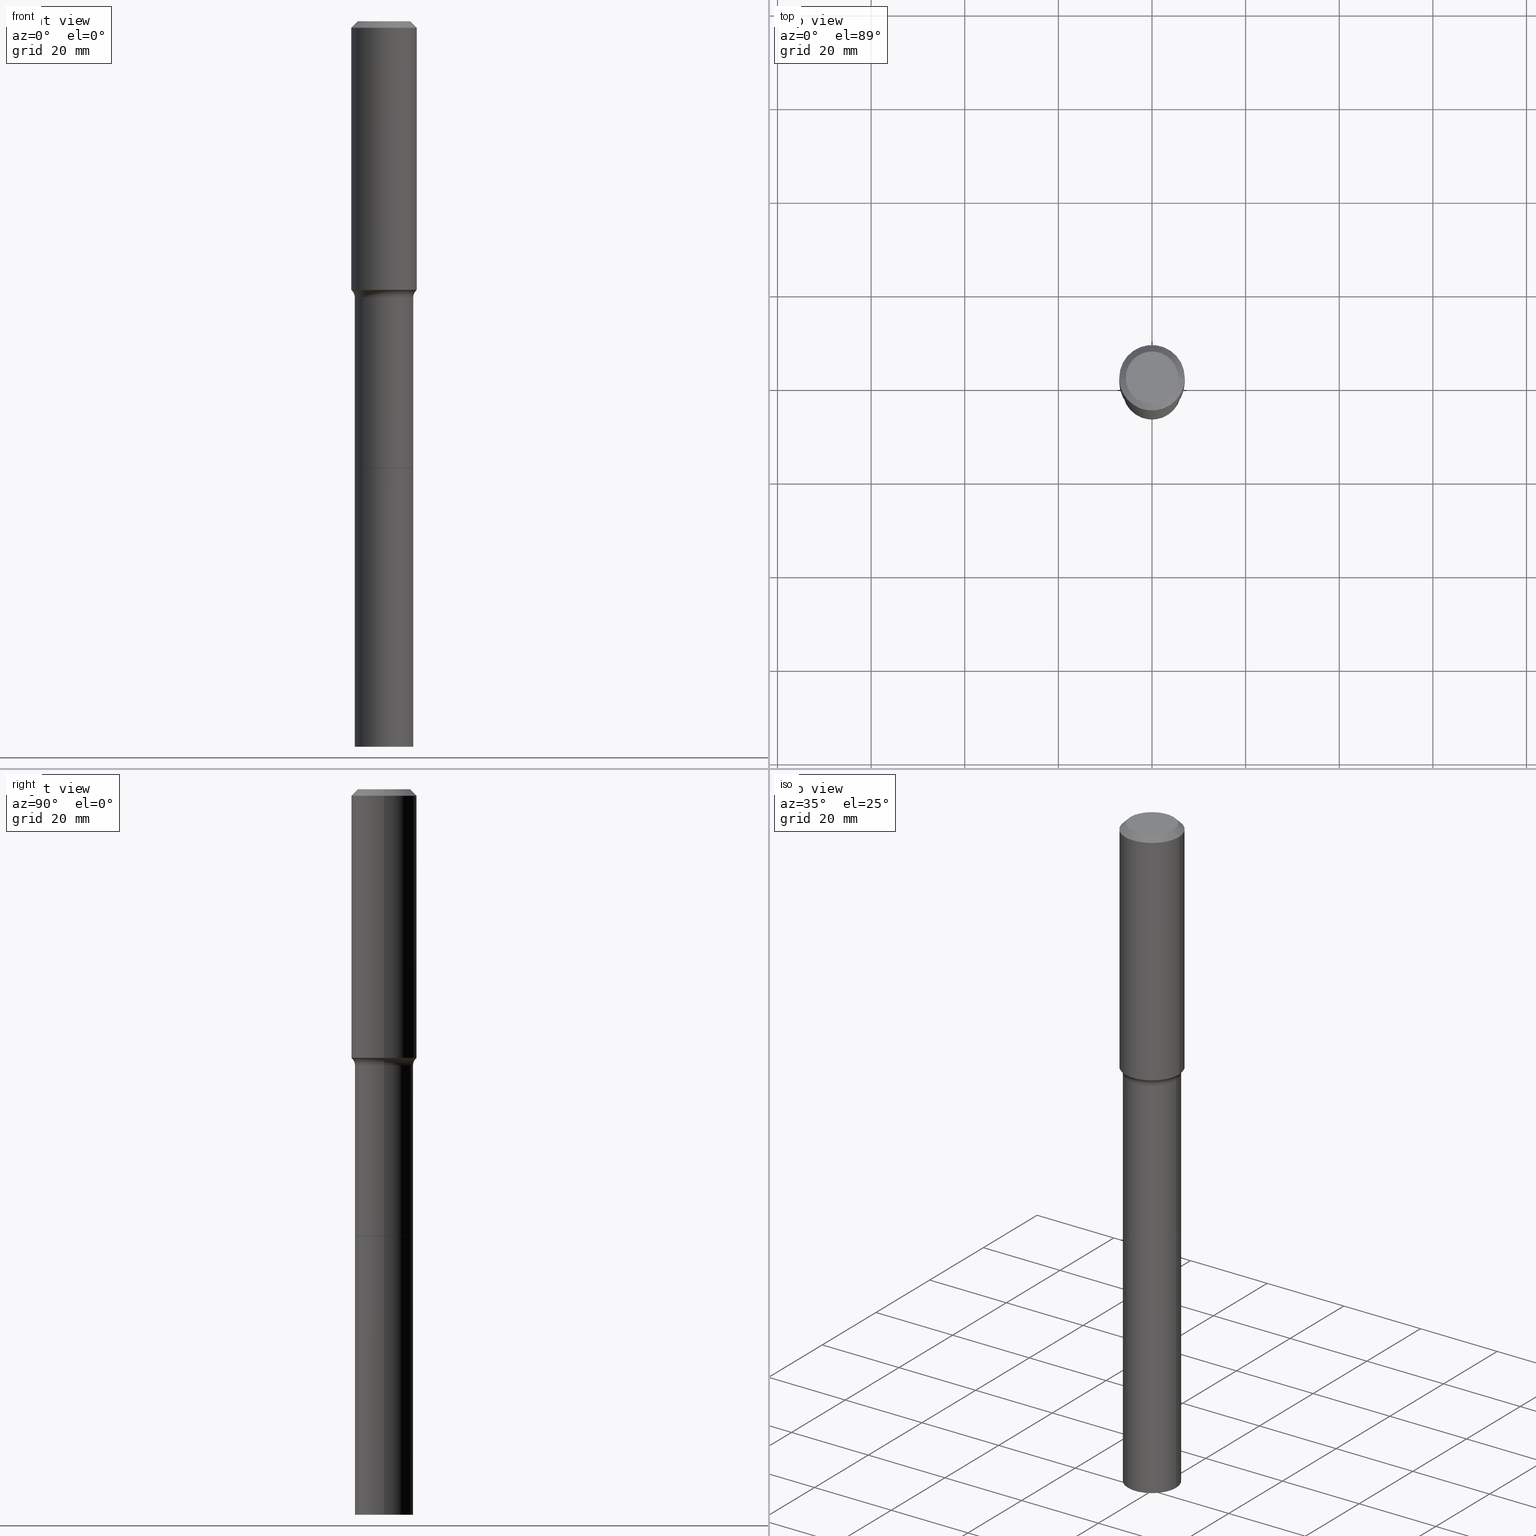
[diagram: canonical four-view strip — front | top / right | iso, engineering-drawing reading convention]
A machine part, canonical four-view strip (front | top / right | iso — engineering-drawing reading convention). The complete STEP part file that produces these views, byte-faithful:
ISO-10303-21;
HEADER;
FILE_DESCRIPTION (( 'STEP AP203' ),
    '1' );
FILE_NAME ('67909.STEP',
    '2025-04-01T15:32:18',
    ( '' ),
    ( '' ),
    'SwSTEP 2.0',
    'SolidWorks 2024',
    '' );
FILE_SCHEMA (( 'CONFIG_CONTROL_DESIGN' ));
ENDSEC;

DATA;
#1 =( NAMED_UNIT ( * ) SI_UNIT ( $, .STERADIAN. ) SOLID_ANGLE_UNIT ( ) );
#2 = ORIENTED_EDGE ( 'NONE', *, *, #195, .F. ) ;
#3 = FACE_OUTER_BOUND ( 'NONE', #356, .T. ) ;
#4 = ORIENTED_EDGE ( 'NONE', *, *, #41, .T. ) ;
#5 = EDGE_CURVE ( 'NONE', #212, #354, #409, .T. ) ;
#6 = EDGE_LOOP ( 'NONE', ( #255, #435, #428, #126 ) ) ;
#7 = PERSON_AND_ORGANIZATION ( #268, #201 ) ;
#8 = ORIENTED_EDGE ( 'NONE', *, *, #383, .F. ) ;
#9 = PERSON_AND_ORGANIZATION ( #268, #201 ) ;
#10 = DIRECTION ( 'NONE',  ( -2.445468806185136877E-29, 3.491481338843145188E-15, 1.000000000000000000 ) ) ;
#11 = CONICAL_SURFACE ( 'NONE', #222, 0.2455499999999999905, 0.7853981633973459164 ) ;
#12 = LOCAL_TIME ( 11, 32, 18.00000000000000000, #492 ) ;
#13 = DATE_AND_TIME ( #344, #230 ) ;
#14 = DIRECTION ( 'NONE',  ( 1.000000000000000000, -6.982962677686265922E-15, 4.876176775795935793E-29 ) ) ;
#15 = EDGE_CURVE ( 'NONE', #75, #204, #391, .T. ) ;
#16 = DIRECTION ( 'NONE',  ( 0.000000000000000000, 0.000000000000000000, 1.000000000000000000 ) ) ;
#17 = CARTESIAN_POINT ( 'NONE',  ( 9.195940898778586679E-29, -1.312936642658576311E-14, -3.760399999999999743 ) ) ;
#18 = DIRECTION ( 'NONE',  ( -2.445468806185136597E-29, 3.491481338843145583E-15, 1.000000000000000000 ) ) ;
#19 = DIRECTION ( 'NONE',  ( -2.445468806185136597E-29, 3.491481338843145583E-15, 1.000000000000000000 ) ) ;
#20 = CARTESIAN_POINT ( 'NONE',  ( 9.195940898778586679E-29, -1.312936642658576311E-14, -3.760399999999999743 ) ) ;
#21 = EDGE_LOOP ( 'NONE', ( #197, #396, #89, #270 ) ) ;
#22 = APPROVAL_ROLE ( '' ) ;
#23 = DIRECTION ( 'NONE',  ( -2.445468806185136877E-29, 3.491481338843145188E-15, 1.000000000000000000 ) ) ;
#24 = APPROVAL ( #98, 'UNSPECIFIED' ) ;
#25 = VERTEX_POINT ( 'NONE', #253 ) ;
#26 = CARTESIAN_POINT ( 'NONE',  ( 0.2460499999999999909, -1.484752439343046924E-14, -3.760399999999999743 ) ) ;
#27 = CIRCLE ( 'NONE', #445, 0.2756000000000000116 ) ;
#28 = VERTEX_POINT ( 'NONE', #402 ) ;
#29 = EDGE_CURVE ( 'NONE', #278, #241, #437, .T. ) ;
#30 = FACE_OUTER_BOUND ( 'NONE', #465, .T. ) ;
#31 = VERTEX_POINT ( 'NONE', #168 ) ;
#32 = DIRECTION ( 'NONE',  ( -2.445468806185136597E-29, 3.491481338843145583E-15, 1.000000000000000000 ) ) ;
#33 = DIRECTION ( 'NONE',  ( 2.438088387897960049E-29, -3.491481338843145188E-15, -1.000000000000000000 ) ) ;
#34 = DIRECTION ( 'NONE',  ( 1.000000000000000000, -6.982962677686266711E-15, 4.876132675269083677E-29 ) ) ;
#35 = VECTOR ( 'NONE', #258, 39.37007874015748143 ) ;
#36 = APPROVAL_PERSON_ORGANIZATION ( #450, #401, #64 ) ;
#37 = DIRECTION ( 'NONE',  ( 1.000000000000000000, -6.982962677686265922E-15, 4.876176775795936353E-29 ) ) ;
#38 = ORIENTED_EDGE ( 'NONE', *, *, #322, .T. ) ;
#39 = CARTESIAN_POINT ( 'NONE',  ( 1.347942405969256063E-30, -1.924504513970354330E-16, -0.05512000000000035621 ) ) ;
#40 = CARTESIAN_POINT ( 'NONE',  ( 5.545932298252180810E-29, -7.918121497546934360E-15, -2.267840131195000275 ) ) ;
#41 = EDGE_CURVE ( 'NONE', #321, #481, #506, .T. ) ;
#42 = FACE_OUTER_BOUND ( 'NONE', #174, .T. ) ;
#43 = DIRECTION ( 'NONE',  ( -2.445468806185136877E-29, 3.491481338843145188E-15, 1.000000000000000000 ) ) ;
#44 = CIRCLE ( 'NONE', #138, 0.2756000000000002892 ) ;
#45 = CIRCLE ( 'NONE', #323, 0.2675417038704662742 ) ;
#46 = PERSON_AND_ORGANIZATION_ROLE ( 'classification_officer' ) ;
#47 = ORIENTED_EDGE ( 'NONE', *, *, #316, .T. ) ;
#48 = CC_DESIGN_PERSON_AND_ORGANIZATION_ASSIGNMENT ( #108, #299, ( #334 ) ) ;
#49 = CYLINDRICAL_SURFACE ( 'NONE', #52, 0.2460499999999999909 ) ;
#50 = PERSON_AND_ORGANIZATION ( #268, #201 ) ;
#51 = DIRECTION ( 'NONE',  ( -2.445468806185136597E-29, 3.491481338843145583E-15, 1.000000000000000000 ) ) ;
#52 = AXIS2_PLACEMENT_3D ( 'NONE', #376, #56, #55 ) ;
#53 = VECTOR ( 'NONE', #324, 39.37007874015748143 ) ;
#54 = UNCERTAINTY_MEASURE_WITH_UNIT (LENGTH_MEASURE( 1.000000000000000082E-05 ), #252, 'distance_accuracy_value', 'NONE');
#55 = DIRECTION ( 'NONE',  ( 1.000000000000000000, -6.982962677686266711E-15, 0.000000000000000000 ) ) ;
#56 = DIRECTION ( 'NONE',  ( -2.445468806185136597E-29, 3.491481338843145583E-15, 1.000000000000000000 ) ) ;
#57 = CC_DESIGN_PERSON_AND_ORGANIZATION_ASSIGNMENT ( #305, #177, ( #254 ) ) ;
#58 = DIRECTION ( 'NONE',  ( -2.445468806185136597E-29, 3.491481338843145583E-15, 1.000000000000000000 ) ) ;
#59 = EDGE_CURVE ( 'NONE', #278, #28, #238, .T. ) ;
#60 = AXIS2_PLACEMENT_3D ( 'NONE', #294, #336, #136 ) ;
#61 = CONICAL_SURFACE ( 'NONE', #342, 0.2756000000000000116, 0.7853981633974452814 ) ;
#62 = PLANE ( 'NONE',  #213 ) ;
#63 = ORIENTED_EDGE ( 'NONE', *, *, #178, .F. ) ;
#64 = APPROVAL_ROLE ( '' ) ;
#65 = CC_DESIGN_DATE_AND_TIME_ASSIGNMENT ( #348, #142, ( #374 ) ) ;
#66 = DIRECTION ( 'NONE',  ( -2.438088387897960049E-29, 3.491481338843145188E-15, 1.000000000000000000 ) ) ;
#67 = ORIENTED_EDGE ( 'NONE', *, *, #511, .T. ) ;
#68 = EDGE_CURVE ( 'NONE', #215, #512, #484, .T. ) ;
#69 = CARTESIAN_POINT ( 'NONE',  ( 0.2460500000000000742, -1.484577865276104695E-14, -3.759899999999999576 ) ) ;
#70 = ORIENTED_EDGE ( 'NONE', *, *, #195, .T. ) ;
#71 = AXIS2_PLACEMENT_3D ( 'NONE', #143, #456, #495 ) ;
#72 = LINE ( 'NONE', #306, #180 ) ;
#73 = ORIENTED_EDGE ( 'NONE', *, *, #219, .F. ) ;
#74 = DIRECTION ( 'NONE',  ( 1.000000000000000000, -6.982962677686266711E-15, 4.876132675269083677E-29 ) ) ;
#75 = VERTEX_POINT ( 'NONE', #364 ) ;
#76 = EDGE_CURVE ( 'NONE', #171, #481, #367, .T. ) ;
#77 = DIRECTION ( 'NONE',  ( 1.000000000000000000, -6.982962677686265922E-15, 0.000000000000000000 ) ) ;
#78 = ORIENTED_EDGE ( 'NONE', *, *, #225, .F. ) ;
#79 = ADVANCED_FACE ( 'NONE', ( #419 ), #49, .T. ) ;
#80 = LINE ( 'NONE', #208, #53 ) ;
#81 = CIRCLE ( 'NONE', #60, 0.2455499999999999905 ) ;
#82 = ORIENTED_EDGE ( 'NONE', *, *, #322, .F. ) ;
#83 = AXIS2_PLACEMENT_3D ( 'NONE', #303, #160, #422 ) ;
#84 = CC_DESIGN_APPROVAL ( #483, ( #334 ) ) ;
#85 = CARTESIAN_POINT ( 'NONE',  ( 5.679356755484361141E-29, -8.108616261329321631E-15, -2.322400000000000020 ) ) ;
#86 = DIRECTION ( 'NONE',  ( 1.000000000000000000, -6.982962677686267499E-15, 0.000000000000000000 ) ) ;
#87 =( LENGTH_UNIT ( ) NAMED_UNIT ( * ) SI_UNIT ( $, .METRE. ) );
#88 = ADVANCED_FACE ( 'NONE', ( #486 ), #420, .T. ) ;
#89 = ORIENTED_EDGE ( 'NONE', *, *, #113, .T. ) ;
#90 = DIRECTION ( 'NONE',  ( 1.000000000000000000, -6.982962677686264344E-15, 0.000000000000000000 ) ) ;
#91 = ORIENTED_EDGE ( 'NONE', *, *, #418, .T. ) ;
#92 = CIRCLE ( 'NONE', #379, 0.2756000000000000116 ) ;
#93 = AXIS2_PLACEMENT_3D ( 'NONE', #338, #457, #14 ) ;
#94 = AXIS2_PLACEMENT_3D ( 'NONE', #235, #277, #427 ) ;
#95 = APPLICATION_PROTOCOL_DEFINITION ( 'international standard', 'config_control_design', 1994, #130 ) ;
#96 = DIRECTION ( 'NONE',  ( -2.445468806185136597E-29, 3.491481338843145583E-15, 1.000000000000000000 ) ) ;
#97 = CARTESIAN_POINT ( 'NONE',  ( 9.194718164375493878E-29, -1.312762068591634082E-14, -3.759899999999999576 ) ) ;
#98 = APPROVAL_STATUS ( 'not_yet_approved' ) ;
#99 = DIRECTION ( 'NONE',  ( 1.000000000000000000, -6.982962677686265922E-15, 4.876176775795935793E-29 ) ) ;
#100 = MANIFOLD_SOLID_BREP ( 'Body-Move/Copy2[1]', #200 ) ;
#101 = AXIS2_PLACEMENT_3D ( 'NONE', #166, #33, #132 ) ;
#102 = ADVANCED_FACE ( 'NONE', ( #144 ), #217, .T. ) ;
#103 = DIRECTION ( 'NONE',  ( -2.445468806185136597E-29, 3.491481338843145583E-15, 1.000000000000000000 ) ) ;
#104 = LINE ( 'NONE', #378, #35 ) ;
#105 = APPLICATION_CONTEXT ( 'configuration controlled 3d designs of mechanical parts and assemblies' ) ;
#106 = CARTESIAN_POINT ( 'NONE',  ( 0.2455499999999999905, -1.484403291209162466E-14, -3.760399999999999743 ) ) ;
#107 = ORIENTED_EDGE ( 'NONE', *, *, #460, .F. ) ;
#108 = PERSON_AND_ORGANIZATION ( #268, #201 ) ;
#109 = AXIS2_PLACEMENT_3D ( 'NONE', #17, #185, #141 ) ;
#110 = AXIS2_PLACEMENT_3D ( 'NONE', #274, #151, #343 ) ;
#111 = CC_DESIGN_APPROVAL ( #24, ( #254 ) ) ;
#112 = ORIENTED_EDGE ( 'NONE', *, *, #127, .F. ) ;
#113 = EDGE_CURVE ( 'NONE', #468, #512, #92, .T. ) ;
#114 = DIRECTION ( 'NONE',  ( 1.000000000000000000, -6.982962677686265922E-15, 4.876176775795935793E-29 ) ) ;
#115 = ORIENTED_EDGE ( 'NONE', *, *, #316, .F. ) ;
#116 = DIRECTION ( 'NONE',  ( 1.000000000000000000, -6.982962677686269077E-15, 0.000000000000000000 ) ) ;
#117 = EDGE_LOOP ( 'NONE', ( #244, #388, #368, #471 ) ) ;
#118 = VECTOR ( 'NONE', #290, 39.37007874015748143 ) ;
#119 = CARTESIAN_POINT ( 'NONE',  ( 0.2756000000000002892, -9.812454499037325729E-15, -2.259198666569575131 ) ) ;
#120 = AXIS2_PLACEMENT_3D ( 'NONE', #442, #476, #173 ) ;
#121 = ADVANCED_FACE ( 'NONE', ( #182 ), #333, .T. ) ;
#122 = ORIENTED_EDGE ( 'NONE', *, *, #245, .T. ) ;
#123 = CYLINDRICAL_SURFACE ( 'NONE', #162, 0.2460499999999999909 ) ;
#124 = CARTESIAN_POINT ( 'NONE',  ( -9.439721640706190018E-47, 1.347742071746724849E-32, 3.860086710912454339E-18 ) ) ;
#125 = CARTESIAN_POINT ( 'NONE',  ( -0.2460499999999999909, -1.546960067303336290E-14, -3.760399999999999743 ) ) ;
#126 = ORIENTED_EDGE ( 'NONE', *, *, #405, .F. ) ;
#127 = EDGE_CURVE ( 'NONE', #28, #215, #226, .T. ) ;
#128 = DIRECTION ( 'NONE',  ( -2.445468806185136597E-29, 3.491481338843145583E-15, 1.000000000000000000 ) ) ;
#129 = DIRECTION ( 'NONE',  ( -2.445468806185136597E-29, 3.491481338843145583E-15, 1.000000000000000000 ) ) ;
#130 = APPLICATION_CONTEXT ( 'configuration controlled 3d designs of mechanical parts and assemblies' ) ;
#131 = EDGE_CURVE ( 'NONE', #354, #212, #81, .T. ) ;
#132 = DIRECTION ( 'NONE',  ( -1.000000000000000000, 6.982962677686265922E-15, -4.876176775795935793E-29 ) ) ;
#133 = ORIENTED_EDGE ( 'NONE', *, *, #262, .T. ) ;
#134 = PLANE ( 'NONE',  #101 ) ;
#135 = CARTESIAN_POINT ( 'NONE',  ( -0.2460499999999999909, -1.138107602524803588E-14, -3.760399999999999743 ) ) ;
#136 = DIRECTION ( 'NONE',  ( 1.000000000000000000, -6.982962677686269077E-15, 0.000000000000000000 ) ) ;
#137 = EDGE_CURVE ( 'NONE', #247, #171, #228, .T. ) ;
#138 = AXIS2_PLACEMENT_3D ( 'NONE', #491, #96, #263 ) ;
#139 = AXIS2_PLACEMENT_3D ( 'NONE', #287, #279, #250 ) ;
#140 = DATE_AND_TIME ( #216, #12 ) ;
#141 = DIRECTION ( 'NONE',  ( 1.000000000000000000, -6.982962677686269077E-15, 0.000000000000000000 ) ) ;
#142 = DATE_TIME_ROLE ( 'classification_date' ) ;
#143 = CARTESIAN_POINT ( 'NONE',  ( 1.492322884286417914E-28, -2.130641572215641241E-14, -6.102400000000000269 ) ) ;
#144 = FACE_OUTER_BOUND ( 'NONE', #430, .T. ) ;
#145 = AXIS2_PLACEMENT_3D ( 'NONE', #124, #398, #34 ) ;
#146 = CIRCLE ( 'NONE', #446, 0.2460499999999999909 ) ;
#147 = EDGE_CURVE ( 'NONE', #215, #241, #44, .T. ) ;
#148 = LINE ( 'NONE', #227, #423 ) ;
#149 = CARTESIAN_POINT ( 'NONE',  ( 5.545932298252180810E-29, -7.918121497546934360E-15, -2.267840131195000275 ) ) ;
#150 = EDGE_CURVE ( 'NONE', #481, #321, #371, .T. ) ;
#151 = DIRECTION ( 'NONE',  ( -2.445468806185136597E-29, 3.491481338843145583E-15, 1.000000000000000000 ) ) ;
#152 = EDGE_LOOP ( 'NONE', ( #78, #251, #122, #477 ) ) ;
#153 = TOROIDAL_SURFACE ( 'NONE', #479, 0.3260499999999998400, 0.07999999999999996003 ) ;
#154 = LOCAL_TIME ( 11, 32, 18.00000000000000000, #466 ) ;
#155 = DIRECTION ( 'NONE',  ( -2.445468806185136597E-29, 3.491481338843145583E-15, 1.000000000000000000 ) ) ;
#156 = ORIENTED_EDGE ( 'NONE', *, *, #499, .T. ) ;
#157 = CARTESIAN_POINT ( 'NONE',  ( 1.492322884286417914E-28, -2.130641572215641241E-14, -6.102400000000000269 ) ) ;
#158 = ORIENTED_EDGE ( 'NONE', *, *, #351, .T. ) ;
#159 = ADVANCED_FACE ( 'NONE', ( #421 ), #331, .T. ) ;
#160 = DIRECTION ( 'NONE',  ( 7.105427357601001859E-15, 1.000000000000000000, -3.491481338843145583E-15 ) ) ;
#161 = ORIENTED_EDGE ( 'NONE', *, *, #5, .F. ) ;
#162 = AXIS2_PLACEMENT_3D ( 'NONE', #407, #360, #395 ) ;
#163 = DIRECTION ( 'NONE',  ( 1.000000000000000000, -6.982962677686267499E-15, 4.883557194083112901E-29 ) ) ;
#164 = TOROIDAL_SURFACE ( 'NONE', #455, 0.3260499999999998400, 0.07999999999999996003 ) ;
#165 = ORIENTED_EDGE ( 'NONE', *, *, #131, .T. ) ;
#166 = CARTESIAN_POINT ( 'NONE',  ( -4.719860820353095009E-47, 6.738710358733624243E-33, 1.930043355456227170E-18 ) ) ;
#167 = ORIENTED_EDGE ( 'NONE', *, *, #357, .F. ) ;
#168 = CARTESIAN_POINT ( 'NONE',  ( -0.2460500000000000742, -8.869828072285101626E-15, -3.759899999999999576 ) ) ;
#169 = FACE_OUTER_BOUND ( 'NONE', #394, .T. ) ;
#170 = VECTOR ( 'NONE', #406, 39.37007874015748143 ) ;
#171 = VERTEX_POINT ( 'NONE', #176 ) ;
#172 = VECTOR ( 'NONE', #429, 39.37007874015748143 ) ;
#173 = DIRECTION ( 'NONE',  ( 1.000000000000000000, -6.982962677686267499E-15, 0.000000000000000000 ) ) ;
#174 = EDGE_LOOP ( 'NONE', ( #432, #317, #192, #73 ) ) ;
#175 = APPROVAL_STATUS ( 'not_yet_approved' ) ;
#176 = CARTESIAN_POINT ( 'NONE',  ( -0.2460499999999999909, -1.546960067303336290E-14, -6.102400000000000269 ) ) ;
#177 = PERSON_AND_ORGANIZATION_ROLE ( 'creator' ) ;
#178 = EDGE_CURVE ( 'NONE', #426, #25, #487, .T. ) ;
#179 = CARTESIAN_POINT ( 'NONE',  ( -0.2675417038704662742, -6.017123355566536661E-15, -2.267840131195000275 ) ) ;
#180 = VECTOR ( 'NONE', #309, 39.37007874015748143 ) ;
#181 = APPROVAL_DATE_TIME ( #13, #401 ) ;
#182 = FACE_OUTER_BOUND ( 'NONE', #6, .T. ) ;
#183 = DESIGN_CONTEXT ( 'detailed design', #105, 'design' ) ;
#184 = PERSON_AND_ORGANIZATION_ROLE ( 'design_supplier' ) ;
#185 = DIRECTION ( 'NONE',  ( -2.445468806185136597E-29, 3.491481338843145583E-15, 1.000000000000000000 ) ) ;
#186 = AXIS2_PLACEMENT_3D ( 'NONE', #353, #19, #509 ) ;
#187 = FACE_OUTER_BOUND ( 'NONE', #234, .T. ) ;
#188 = LINE ( 'NONE', #384, #172 ) ;
#189 = ORIENTED_EDGE ( 'NONE', *, *, #460, .T. ) ;
#190 = COORDINATED_UNIVERSAL_TIME_OFFSET ( 5, 0, .BEHIND. ) ;
#191 = LINE ( 'NONE', #106, #382 ) ;
#192 = ORIENTED_EDGE ( 'NONE', *, *, #41, .F. ) ;
#193 = CIRCLE ( 'NONE', #94, 0.2756000000000002892 ) ;
#194 = CARTESIAN_POINT ( 'NONE',  ( 0.2460499999999999909, -2.302457368900111697E-14, -6.102400000000000269 ) ) ;
#195 = EDGE_CURVE ( 'NONE', #354, #31, #104, .T. ) ;
#196 = CARTESIAN_POINT ( 'NONE',  ( 0.2460499999999999632, -1.718157966844705541E-15, 1.199783295684589923E-29 ) ) ;
#197 = ORIENTED_EDGE ( 'NONE', *, *, #15, .F. ) ;
#198 = CARTESIAN_POINT ( 'NONE',  ( -0.2756000000000000116, -2.081944438477174284E-15, -0.05512000000000035621 ) ) ;
#199 = ORIENTED_EDGE ( 'NONE', *, *, #351, .F. ) ;
#200 = CLOSED_SHELL ( 'NONE', ( #449, #88, #79, #454 ) ) ;
#201 = ORGANIZATION ( 'UNSPECIFIED', 'UNSPECIFIED', '' ) ;
#202 = DIRECTION ( 'NONE',  ( -2.445468806185136597E-29, 3.491481338843145583E-15, 1.000000000000000000 ) ) ;
#203 = EDGE_CURVE ( 'NONE', #319, #31, #239, .T. ) ;
#204 = VERTEX_POINT ( 'NONE', #260 ) ;
#205 = LENGTH_MEASURE_WITH_UNIT ( LENGTH_MEASURE( 0.02539999999999999897 ), #87 );
#206 = ADVANCED_FACE ( 'NONE', ( #300 ), #164, .F. ) ;
#207 = ORIENTED_EDGE ( 'NONE', *, *, #59, .T. ) ;
#208 = CARTESIAN_POINT ( 'NONE',  ( -0.2460499999999999632, 1.748290401337726246E-15, -1.210303978957219394E-29 ) ) ;
#209 = CARTESIAN_POINT ( 'NONE',  ( -0.2756000000000001782, 1.958255779754837378E-15, -1.355658510874252848E-29 ) ) ;
#210 = CYLINDRICAL_SURFACE ( 'NONE', #285, 0.2460499999999999632 ) ;
#211 = AXIS2_PLACEMENT_3D ( 'NONE', #265, #51, #99 ) ;
#212 = VERTEX_POINT ( 'NONE', #453 ) ;
#213 = AXIS2_PLACEMENT_3D ( 'NONE', #393, #66, #114 ) ;
#214 = CALENDAR_DATE ( 2025, 1, 4 ) ;
#215 = VERTEX_POINT ( 'NONE', #498 ) ;
#216 = CALENDAR_DATE ( 2025, 1, 4 ) ;
#217 = CYLINDRICAL_SURFACE ( 'NONE', #93, 0.2756000000000001782 ) ;
#218 = SECURITY_CLASSIFICATION_LEVEL ( 'unclassified' ) ;
#219 = EDGE_CURVE ( 'NONE', #247, #321, #148, .T. ) ;
#220 = DIRECTION ( 'NONE',  ( 1.000000000000000000, -6.982962677686265922E-15, 0.000000000000000000 ) ) ;
#221 = CLOSED_SHELL ( 'NONE', ( #159, #494, #121, #502, #206, #326, #469, #412, #339, #102, #242, #438, #236, #302 ) ) ;
#222 = AXIS2_PLACEMENT_3D ( 'NONE', #20, #387, #116 ) ;
#223 = CALENDAR_DATE ( 2025, 1, 4 ) ;
#224 = DIRECTION ( 'NONE',  ( -2.445468806185136597E-29, 3.491481338843145583E-15, 1.000000000000000000 ) ) ;
#225 = EDGE_CURVE ( 'NONE', #28, #25, #365, .T. ) ;
#226 = LINE ( 'NONE', #179, #496 ) ;
#227 = CARTESIAN_POINT ( 'NONE',  ( 0.2460499999999999909, -1.484752439343046924E-14, -3.760399999999999743 ) ) ;
#228 = CIRCLE ( 'NONE', #359, 0.2460499999999999909 ) ;
#229 = AXIS2_PLACEMENT_3D ( 'NONE', #389, #273, #243 ) ;
#230 = LOCAL_TIME ( 11, 32, 18.00000000000000000, #257 ) ;
#231 = DIRECTION ( 'NONE',  ( 1.000000000000000000, -6.982962677686259611E-15, 0.000000000000000000 ) ) ;
#232 = ORIENTED_EDGE ( 'NONE', *, *, #511, .F. ) ;
#233 = FACE_OUTER_BOUND ( 'NONE', #473, .T. ) ;
#234 = EDGE_LOOP ( 'NONE', ( #112, #288, #385, #283 ) ) ;
#235 = CARTESIAN_POINT ( 'NONE',  ( 5.524799866070951435E-29, -7.887949985066989197E-15, -2.259198666569575131 ) ) ;
#236 = ADVANCED_FACE ( 'NONE', ( #233 ), #62, .F. ) ;
#237 = ORIENTED_EDGE ( 'NONE', *, *, #418, .F. ) ;
#238 = CIRCLE ( 'NONE', #292, 0.2675417038704662742 ) ;
#239 = CIRCLE ( 'NONE', #332, 0.2460500000000000742 ) ;
#240 = CARTESIAN_POINT ( 'NONE',  ( -0.2455499999999999905, -1.138197951175272400E-14, -3.760399999999999743 ) ) ;
#241 = VERTEX_POINT ( 'NONE', #119 ) ;
#242 = ADVANCED_FACE ( 'NONE', ( #30 ), #372, .T. ) ;
#243 = DIRECTION ( 'NONE',  ( -1.000000000000000000, 6.982962677686269077E-15, 0.000000000000000000 ) ) ;
#244 = ORIENTED_EDGE ( 'NONE', *, *, #76, .F. ) ;
#245 = EDGE_CURVE ( 'NONE', #278, #426, #474, .T. ) ;
#246 = PLANE ( 'NONE',  #139 ) ;
#247 = VERTEX_POINT ( 'NONE', #194 ) ;
#248 = AXIS2_PLACEMENT_3D ( 'NONE', #467, #313, #269 ) ;
#249 = CARTESIAN_POINT ( 'NONE',  ( 0.2675417038704662742, -9.786355230398991649E-15, -2.267840131195000275 ) ) ;
#250 = DIRECTION ( 'NONE',  ( -1.000000000000000000, 6.982962677686265922E-15, -4.876176775795935793E-29 ) ) ;
#251 = ORIENTED_EDGE ( 'NONE', *, *, #59, .F. ) ;
#252 =( CONVERSION_BASED_UNIT ( 'INCH', #205 ) LENGTH_UNIT ( ) NAMED_UNIT ( #403 ) );
#253 = CARTESIAN_POINT ( 'NONE',  ( -0.2460499999999998799, -8.869828072285103204E-15, -2.322400000000000020 ) ) ;
#254 = PRODUCT_DEFINITION ( 'UNKNOWN', '', #334, #183 ) ;
#255 = ORIENTED_EDGE ( 'NONE', *, *, #298, .T. ) ;
#256 = VECTOR ( 'NONE', #304, 39.37007874015748143 ) ;
#257 = COORDINATED_UNIVERSAL_TIME_OFFSET ( 5, 0, .BEHIND. ) ;
#258 = DIRECTION ( 'NONE',  ( -0.7071067811864750752, 7.493145998870092258E-15, 0.7071067811866199593 ) ) ;
#259 = DATE_AND_TIME ( #261, #489 ) ;
#260 = CARTESIAN_POINT ( 'NONE',  ( -0.2204800000000000093, 1.635828836874783961E-15, 3.860086710901350968E-18 ) ) ;
#261 = CALENDAR_DATE ( 2025, 1, 4 ) ;
#262 = EDGE_CURVE ( 'NONE', #204, #512, #271, .T. ) ;
#263 = DIRECTION ( 'NONE',  ( 1.000000000000000000, -6.982962677686265922E-15, 0.000000000000000000 ) ) ;
#264 = AXIS2_PLACEMENT_3D ( 'NONE', #480, #282, #320 ) ;
#265 = CARTESIAN_POINT ( 'NONE',  ( 0.000000000000000000, 0.000000000000000000, 0.000000000000000000 ) ) ;
#266 = PRODUCT ( '67909', '67909', '', ( #330 ) ) ;
#267 = CARTESIAN_POINT ( 'NONE',  ( 1.492322884286417914E-28, -2.130641572215641241E-14, -6.102400000000000269 ) ) ;
#268 = PERSON ( 'UNSPECIFIED', 'UNSPECIFIED', 'UNSPECIFIED', ('UNSPECIFIED'), ('UNSPECIFIED'), ('UNSPECIFIED') ) ;
#269 = DIRECTION ( 'NONE',  ( 1.000000000000000000, -6.982962677686262766E-15, 0.000000000000000000 ) ) ;
#270 = ORIENTED_EDGE ( 'NONE', *, *, #262, .F. ) ;
#271 = LINE ( 'NONE', #345, #256 ) ;
#272 = EDGE_LOOP ( 'NONE', ( #4, #510 ) ) ;
#273 = DIRECTION ( 'NONE',  ( 2.445468806185136597E-29, -3.491481338843145583E-15, -1.000000000000000000 ) ) ;
#274 = CARTESIAN_POINT ( 'NONE',  ( 5.545932298252180810E-29, -7.918121497546934360E-15, -2.267840131195000275 ) ) ;
#275 = ORIENTED_EDGE ( 'NONE', *, *, #5, .T. ) ;
#276 = CONICAL_SURFACE ( 'NONE', #120, 0.2675417038704662742, 0.7504915783575631938 ) ;
#277 = DIRECTION ( 'NONE',  ( -2.445468806185136597E-29, 3.491481338843145583E-15, 1.000000000000000000 ) ) ;
#278 = VERTEX_POINT ( 'NONE', #472 ) ;
#279 = DIRECTION ( 'NONE',  ( 2.438088387897960049E-29, -3.491481338843145188E-15, -1.000000000000000000 ) ) ;
#280 = EDGE_LOOP ( 'NONE', ( #275, #70, #459, #199 ) ) ;
#281 = CC_DESIGN_DATE_AND_TIME_ASSIGNMENT ( #259, #413, ( #254 ) ) ;
#282 = DIRECTION ( 'NONE',  ( -2.445468806185136597E-29, 3.491481338843145583E-15, 1.000000000000000000 ) ) ;
#283 = ORIENTED_EDGE ( 'NONE', *, *, #147, .F. ) ;
#284 = VECTOR ( 'NONE', #43, 39.37007874015748143 ) ;
#285 = AXIS2_PLACEMENT_3D ( 'NONE', #397, #128, #37 ) ;
#286 = DIRECTION ( 'NONE',  ( 1.000000000000000000, -6.982962677686266711E-15, 0.000000000000000000 ) ) ;
#287 = CARTESIAN_POINT ( 'NONE',  ( 9.195940898778586679E-29, -1.312936642658576311E-14, -3.760399999999999743 ) ) ;
#288 = ORIENTED_EDGE ( 'NONE', *, *, #377, .T. ) ;
#289 = CARTESIAN_POINT ( 'NONE',  ( 0.2756000000000000116, -2.116954965367370658E-15, -0.05512000000000035621 ) ) ;
#290 = DIRECTION ( 'NONE',  ( -2.445468806185136877E-29, 3.491481338843145188E-15, 1.000000000000000000 ) ) ;
#291 = APPROVAL_DATE_TIME ( #140, #24 ) ;
#292 = AXIS2_PLACEMENT_3D ( 'NONE', #40, #440, #86 ) ;
#293 = AXIS2_PLACEMENT_3D ( 'NONE', #447, #16, #386 ) ;
#294 = CARTESIAN_POINT ( 'NONE',  ( 9.195940898778586679E-29, -1.312936642658576311E-14, -3.760399999999999743 ) ) ;
#295 = APPROVAL_PERSON_ORGANIZATION ( #50, #483, #490 ) ;
#296 = PERSON_AND_ORGANIZATION ( #268, #201 ) ;
#297 = DIRECTION ( 'NONE',  ( 1.000000000000000000, -6.982962677686267499E-15, 4.883557194083112901E-29 ) ) ;
#298 = EDGE_CURVE ( 'NONE', #241, #215, #193, .T. ) ;
#299 = PERSON_AND_ORGANIZATION_ROLE ( 'creator' ) ;
#300 = FACE_OUTER_BOUND ( 'NONE', #310, .T. ) ;
#301 = DIRECTION ( 'NONE',  ( -2.445468806185136597E-29, 3.491481338843145583E-15, 1.000000000000000000 ) ) ;
#302 = ADVANCED_FACE ( 'NONE', ( #463 ), #11, .T. ) ;
#303 = CARTESIAN_POINT ( 'NONE',  ( -0.3260499999999998400, -5.791891671383515324E-15, -2.322400000000000020 ) ) ;
#304 = DIRECTION ( 'NONE',  ( -0.7071067811865453523, 2.468850131082234184E-15, -0.7071067811865496822 ) ) ;
#305 = PERSON_AND_ORGANIZATION ( #268, #201 ) ;
#306 = CARTESIAN_POINT ( 'NONE',  ( 0.2756000000000001782, -1.924504513970336137E-15, 1.343874319409360828E-29 ) ) ;
#307 = ORIENTED_EDGE ( 'NONE', *, *, #377, .F. ) ;
#308 = LOCAL_TIME ( 11, 32, 18.00000000000000000, #415 ) ;
#309 = DIRECTION ( 'NONE',  ( -2.445468806185136877E-29, 3.491481338843145188E-15, 1.000000000000000000 ) ) ;
#310 = EDGE_LOOP ( 'NONE', ( #307, #325, #91, #424 ) ) ;
#311 = DIRECTION ( 'NONE',  ( -2.445468806185136597E-29, 3.491481338843145583E-15, 1.000000000000000000 ) ) ;
#312 = ORIENTED_EDGE ( 'NONE', *, *, #499, .F. ) ;
#313 = DIRECTION ( 'NONE',  ( -6.982962677686266711E-15, -1.000000000000000000, 3.491481338843145583E-15 ) ) ;
#314 = ORIENTED_EDGE ( 'NONE', *, *, #15, .T. ) ;
#315 = VECTOR ( 'NONE', #23, 39.37007874015748143 ) ;
#316 = EDGE_CURVE ( 'NONE', #319, #426, #458, .T. ) ;
#317 = ORIENTED_EDGE ( 'NONE', *, *, #76, .T. ) ;
#318 = FACE_OUTER_BOUND ( 'NONE', #361, .T. ) ;
#319 = VERTEX_POINT ( 'NONE', #69 ) ;
#320 = DIRECTION ( 'NONE',  ( 1.000000000000000000, -6.982962677686269866E-15, 0.000000000000000000 ) ) ;
#321 = VERTEX_POINT ( 'NONE', #26 ) ;
#322 = EDGE_CURVE ( 'NONE', #204, #75, #392, .T. ) ;
#323 = AXIS2_PLACEMENT_3D ( 'NONE', #149, #311, #349 ) ;
#324 = DIRECTION ( 'NONE',  ( -2.445468806185136877E-29, 3.491481338843145188E-15, 1.000000000000000000 ) ) ;
#325 = ORIENTED_EDGE ( 'NONE', *, *, #225, .T. ) ;
#326 = ADVANCED_FACE ( 'NONE', ( #425 ), #470, .T. ) ;
#327 = DIRECTION ( 'NONE',  ( -1.000000000000000000, 6.982962677686269077E-15, 0.000000000000000000 ) ) ;
#328 = CARTESIAN_POINT ( 'NONE',  ( 9.195940898778586679E-29, -1.312936642658576311E-14, -3.760399999999999743 ) ) ;
#329 = CARTESIAN_POINT ( 'NONE',  ( 5.679356755484361141E-29, -8.108616261329321631E-15, -2.322400000000000020 ) ) ;
#330 = MECHANICAL_CONTEXT ( 'NONE', #130, 'mechanical' ) ;
#331 = CONICAL_SURFACE ( 'NONE', #109, 0.2455499999999999905, 0.7853981633973459164 ) ;
#332 = AXIS2_PLACEMENT_3D ( 'NONE', #97, #18, #414 ) ;
#333 = CYLINDRICAL_SURFACE ( 'NONE', #211, 0.2756000000000001782 ) ;
#334 = PRODUCT_DEFINITION_FORMATION_WITH_SPECIFIED_SOURCE ( 'ANY', '', #266, .NOT_KNOWN. ) ;
#335 = SHAPE_DEFINITION_REPRESENTATION ( #337, #505 ) ;
#336 = DIRECTION ( 'NONE',  ( -2.445468806185136597E-29, 3.491481338843145583E-15, 1.000000000000000000 ) ) ;
#337 = PRODUCT_DEFINITION_SHAPE ( 'NONE', 'NONE',  #254 ) ;
#338 = CARTESIAN_POINT ( 'NONE',  ( 0.000000000000000000, 0.000000000000000000, 0.000000000000000000 ) ) ;
#339 = ADVANCED_FACE ( 'NONE', ( #187 ), #507, .T. ) ;
#340 = CARTESIAN_POINT ( 'NONE',  ( 5.679356755484361141E-29, -8.108616261329321631E-15, -2.322400000000000020 ) ) ;
#341 = AXIS2_PLACEMENT_3D ( 'NONE', #380, #103, #493 ) ;
#342 = AXIS2_PLACEMENT_3D ( 'NONE', #39, #436, #327 ) ;
#343 = DIRECTION ( 'NONE',  ( 1.000000000000000000, -6.982962677686267499E-15, 0.000000000000000000 ) ) ;
#344 = CALENDAR_DATE ( 2025, 1, 4 ) ;
#345 = CARTESIAN_POINT ( 'NONE',  ( -0.2756000000000000116, 1.732054062573300039E-15, -0.05512000000000035621 ) ) ;
#346 = CC_DESIGN_PERSON_AND_ORGANIZATION_ASSIGNMENT ( #7, #46, ( #374 ) ) ;
#347 = EDGE_LOOP ( 'NONE', ( #350, #167 ) ) ;
#348 = DATE_AND_TIME ( #223, #154 ) ;
#349 = DIRECTION ( 'NONE',  ( 1.000000000000000000, -6.982962677686267499E-15, 0.000000000000000000 ) ) ;
#350 = ORIENTED_EDGE ( 'NONE', *, *, #137, .F. ) ;
#351 = EDGE_CURVE ( 'NONE', #212, #319, #191, .T. ) ;
#352 = CIRCLE ( 'NONE', #497, 0.2460500000000000742 ) ;
#353 = CARTESIAN_POINT ( 'NONE',  ( 0.000000000000000000, 0.000000000000000000, 0.000000000000000000 ) ) ;
#354 = VERTEX_POINT ( 'NONE', #240 ) ;
#355 = FACE_OUTER_BOUND ( 'NONE', #152, .T. ) ;
#356 = EDGE_LOOP ( 'NONE', ( #207, #411, #503, #514 ) ) ;
#357 = EDGE_CURVE ( 'NONE', #171, #247, #146, .T. ) ;
#358 = EDGE_LOOP ( 'NONE', ( #443, #156, #63, #115 ) ) ;
#359 = AXIS2_PLACEMENT_3D ( 'NONE', #267, #224, #373 ) ;
#360 = DIRECTION ( 'NONE',  ( -2.445468806185136597E-29, 3.491481338843145583E-15, 1.000000000000000000 ) ) ;
#361 = EDGE_LOOP ( 'NONE', ( #312, #67, #47, #237 ) ) ;
#362 = ORIENTED_EDGE ( 'NONE', *, *, #131, .F. ) ;
#363 = CARTESIAN_POINT ( 'NONE',  ( 9.194718164375493878E-29, -1.312762068591634082E-14, -3.759899999999999576 ) ) ;
#364 = CARTESIAN_POINT ( 'NONE',  ( 0.2204800000000000093, -1.797903149065768707E-15, 3.860086710924123164E-18 ) ) ;
#365 = CIRCLE ( 'NONE', #83, 0.07999999999999996003 ) ;
#366 = CARTESIAN_POINT ( 'NONE',  ( 0.2460499999999998799, -9.826774228174027764E-15, -2.322400000000000020 ) ) ;
#367 = LINE ( 'NONE', #135, #118 ) ;
#368 = ORIENTED_EDGE ( 'NONE', *, *, #219, .T. ) ;
#369 = CC_DESIGN_PERSON_AND_ORGANIZATION_ASSIGNMENT ( #9, #417, ( #266 ) ) ;
#370 = DIRECTION ( 'NONE',  ( -0.6819983600624995868, 7.399397606724291309E-15, 0.7313537016191694606 ) ) ;
#371 = CIRCLE ( 'NONE', #341, 0.2460499999999999909 ) ;
#372 = CONICAL_SURFACE ( 'NONE', #229, 0.2756000000000000116, 0.7853981633974452814 ) ;
#373 = DIRECTION ( 'NONE',  ( 1.000000000000000000, -6.982962677686259611E-15, 0.000000000000000000 ) ) ;
#374 = SECURITY_CLASSIFICATION ( '', '', #218 ) ;
#375 = APPROVAL_DATE_TIME ( #410, #483 ) ;
#376 = CARTESIAN_POINT ( 'NONE',  ( 9.195940898778586679E-29, -1.312936642658576311E-14, -3.760399999999999743 ) ) ;
#377 = EDGE_CURVE ( 'NONE', #28, #278, #45, .T. ) ;
#378 = CARTESIAN_POINT ( 'NONE',  ( -0.2455499999999999905, -1.138462873892683599E-14, -3.760399999999999743 ) ) ;
#379 = AXIS2_PLACEMENT_3D ( 'NONE', #448, #301, #220 ) ;
#380 = CARTESIAN_POINT ( 'NONE',  ( 9.195940898778586679E-29, -1.312936642658576311E-14, -3.760399999999999743 ) ) ;
#381 = AXIS2_PLACEMENT_3D ( 'NONE', #328, #475, #441 ) ;
#382 = VECTOR ( 'NONE', #500, 39.37007874015748143 ) ;
#383 = EDGE_CURVE ( 'NONE', #75, #468, #188, .T. ) ;
#384 = CARTESIAN_POINT ( 'NONE',  ( 0.2756000000000000116, -2.083203699582869812E-15, -0.05512000000000035621 ) ) ;
#385 = ORIENTED_EDGE ( 'NONE', *, *, #29, .T. ) ;
#386 = DIRECTION ( 'NONE',  ( 1.000000000000000000, 0.000000000000000000, 0.000000000000000000 ) ) ;
#387 = DIRECTION ( 'NONE',  ( -2.445468806185136597E-29, 3.491481338843145583E-15, 1.000000000000000000 ) ) ;
#388 = ORIENTED_EDGE ( 'NONE', *, *, #357, .T. ) ;
#389 = CARTESIAN_POINT ( 'NONE',  ( 1.347942405969256063E-30, -1.924504513970354330E-16, -0.05512000000000035621 ) ) ;
#390 = ORIENTED_EDGE ( 'NONE', *, *, #68, .F. ) ;
#391 = CIRCLE ( 'NONE', #145, 0.2204800000000000093 ) ;
#392 = CIRCLE ( 'NONE', #399, 0.2204800000000000093 ) ;
#393 = CARTESIAN_POINT ( 'NONE',  ( 9.195940898778586679E-29, -1.312936642658576311E-14, -3.760399999999999743 ) ) ;
#394 = EDGE_LOOP ( 'NONE', ( #38, #314 ) ) ;
#395 = DIRECTION ( 'NONE',  ( 1.000000000000000000, -6.982962677686266711E-15, 0.000000000000000000 ) ) ;
#396 = ORIENTED_EDGE ( 'NONE', *, *, #383, .T. ) ;
#397 = CARTESIAN_POINT ( 'NONE',  ( 0.000000000000000000, 0.000000000000000000, 0.000000000000000000 ) ) ;
#398 = DIRECTION ( 'NONE',  ( -2.445468806185136597E-29, 3.491481338843145583E-15, 1.000000000000000000 ) ) ;
#399 = AXIS2_PLACEMENT_3D ( 'NONE', #501, #431, #74 ) ;
#400 = CC_DESIGN_SECURITY_CLASSIFICATION ( #374, ( #334 ) ) ;
#401 = APPROVAL ( #175, 'UNSPECIFIED' ) ;
#402 = CARTESIAN_POINT ( 'NONE',  ( -0.2675417038704662742, -6.017123355566536661E-15, -2.267840131195000275 ) ) ;
#403 = DIMENSIONAL_EXPONENTS ( 1.000000000000000000, 0.000000000000000000, 0.000000000000000000, 0.000000000000000000, 0.000000000000000000, 0.000000000000000000, 0.000000000000000000 ) ;
#404 = CARTESIAN_POINT ( 'NONE',  ( 1.347942405969256063E-30, -1.924504513970354330E-16, -0.05512000000000035621 ) ) ;
#405 = EDGE_CURVE ( 'NONE', #241, #468, #72, .T. ) ;
#406 = DIRECTION ( 'NONE',  ( 0.6819983600624995868, -2.208861293262486453E-15, 0.7313537016191694606 ) ) ;
#407 = CARTESIAN_POINT ( 'NONE',  ( 9.195940898778586679E-29, -1.312936642658576311E-14, -3.760399999999999743 ) ) ;
#408 = ORIENTED_EDGE ( 'NONE', *, *, #147, .T. ) ;
#409 = CIRCLE ( 'NONE', #381, 0.2455499999999999905 ) ;
#410 = DATE_AND_TIME ( #214, #308 ) ;
#411 = ORIENTED_EDGE ( 'NONE', *, *, #127, .T. ) ;
#412 = ADVANCED_FACE ( 'NONE', ( #355 ), #153, .F. ) ;
#413 = DATE_TIME_ROLE ( 'creation_date' ) ;
#414 = DIRECTION ( 'NONE',  ( 1.000000000000000000, -6.982962677686264344E-15, 0.000000000000000000 ) ) ;
#415 = COORDINATED_UNIVERSAL_TIME_OFFSET ( 5, 0, .BEHIND. ) ;
#416 = DIRECTION ( 'NONE',  ( -2.445468806185136597E-29, 3.491481338843145583E-15, 1.000000000000000000 ) ) ;
#417 = PERSON_AND_ORGANIZATION_ROLE ( 'design_owner' ) ;
#418 = EDGE_CURVE ( 'NONE', #25, #426, #464, .T. ) ;
#419 = FACE_OUTER_BOUND ( 'NONE', #117, .T. ) ;
#420 = PLANE ( 'NONE',  #71 ) ;
#421 = FACE_OUTER_BOUND ( 'NONE', #280, .T. ) ;
#422 = DIRECTION ( 'NONE',  ( -1.000000000000000000, 7.105427357601001859E-15, 0.000000000000000000 ) ) ;
#423 = VECTOR ( 'NONE', #10, 39.37007874015748143 ) ;
#424 = ORIENTED_EDGE ( 'NONE', *, *, #245, .F. ) ;
#425 = FACE_OUTER_BOUND ( 'NONE', #358, .T. ) ;
#426 = VERTEX_POINT ( 'NONE', #366 ) ;
#427 = DIRECTION ( 'NONE',  ( 1.000000000000000000, -6.982962677686265922E-15, 0.000000000000000000 ) ) ;
#428 = ORIENTED_EDGE ( 'NONE', *, *, #113, .F. ) ;
#429 = DIRECTION ( 'NONE',  ( 0.7071067811865453523, -7.319954787623248157E-15, -0.7071067811865496822 ) ) ;
#430 = EDGE_LOOP ( 'NONE', ( #390, #408, #518, #107 ) ) ;
#431 = DIRECTION ( 'NONE',  ( -2.445468806185136597E-29, 3.491481338843145583E-15, 1.000000000000000000 ) ) ;
#432 = ORIENTED_EDGE ( 'NONE', *, *, #137, .T. ) ;
#433 = PRODUCT_RELATED_PRODUCT_CATEGORY ( 'detail', '', ( #266 ) ) ;
#434 = FACE_OUTER_BOUND ( 'NONE', #272, .T. ) ;
#435 = ORIENTED_EDGE ( 'NONE', *, *, #68, .T. ) ;
#436 = DIRECTION ( 'NONE',  ( 2.445468806185136597E-29, -3.491481338843145583E-15, -1.000000000000000000 ) ) ;
#437 = LINE ( 'NONE', #249, #170 ) ;
#438 = ADVANCED_FACE ( 'NONE', ( #169 ), #134, .F. ) ;
#439 = MANIFOLD_SOLID_BREP ( 'Body-Move/Copy2[2]', #221 ) ;
#440 = DIRECTION ( 'NONE',  ( -2.445468806185136597E-29, 3.491481338843145583E-15, 1.000000000000000000 ) ) ;
#441 = DIRECTION ( 'NONE',  ( 1.000000000000000000, -6.982962677686269077E-15, 0.000000000000000000 ) ) ;
#442 = CARTESIAN_POINT ( 'NONE',  ( 5.545932298252180810E-29, -7.918121497546934360E-15, -2.267840131195000275 ) ) ;
#443 = ORIENTED_EDGE ( 'NONE', *, *, #203, .T. ) ;
#444 = AXIS2_PLACEMENT_3D ( 'NONE', #478, #129, #286 ) ;
#445 = AXIS2_PLACEMENT_3D ( 'NONE', #404, #32, #77 ) ;
#446 = AXIS2_PLACEMENT_3D ( 'NONE', #157, #155, #231 ) ;
#447 = CARTESIAN_POINT ( 'NONE',  ( 0.000000000000000000, 0.000000000000000000, 0.000000000000000000 ) ) ;
#448 = CARTESIAN_POINT ( 'NONE',  ( 1.347942405969256063E-30, -1.924504513970354330E-16, -0.05512000000000035621 ) ) ;
#449 = ADVANCED_FACE ( 'NONE', ( #42 ), #123, .T. ) ;
#450 = PERSON_AND_ORGANIZATION ( #268, #201 ) ;
#451 = DIRECTION ( 'NONE',  ( 1.000000000000000000, -6.982962677686269866E-15, 0.000000000000000000 ) ) ;
#452 = CC_DESIGN_PERSON_AND_ORGANIZATION_ASSIGNMENT ( #296, #184, ( #334 ) ) ;
#453 = CARTESIAN_POINT ( 'NONE',  ( 0.2455499999999999905, -1.484403291209162466E-14, -3.760399999999999743 ) ) ;
#454 = ADVANCED_FACE ( 'NONE', ( #434 ), #246, .F. ) ;
#455 = AXIS2_PLACEMENT_3D ( 'NONE', #340, #416, #297 ) ;
#456 = DIRECTION ( 'NONE',  ( 2.438088387897960049E-29, -3.491481338843145188E-15, -1.000000000000000000 ) ) ;
#457 = DIRECTION ( 'NONE',  ( -2.445468806185136597E-29, 3.491481338843145583E-15, 1.000000000000000000 ) ) ;
#458 = LINE ( 'NONE', #196, #315 ) ;
#459 = ORIENTED_EDGE ( 'NONE', *, *, #203, .F. ) ;
#460 = EDGE_CURVE ( 'NONE', #512, #468, #27, .T. ) ;
#461 = APPROVAL_STATUS ( 'not_yet_approved' ) ;
#462 = AXIS2_PLACEMENT_3D ( 'NONE', #329, #58, #451 ) ;
#463 = FACE_OUTER_BOUND ( 'NONE', #508, .T. ) ;
#464 = CIRCLE ( 'NONE', #264, 0.2460499999999998799 ) ;
#465 = EDGE_LOOP ( 'NONE', ( #8, #82, #133, #189 ) ) ;
#466 = COORDINATED_UNIVERSAL_TIME_OFFSET ( 5, 0, .BEHIND. ) ;
#467 = CARTESIAN_POINT ( 'NONE',  ( 0.3260499999999998400, -1.038541124238892784E-14, -2.322400000000000020 ) ) ;
#468 = VERTEX_POINT ( 'NONE', #289 ) ;
#469 = ADVANCED_FACE ( 'NONE', ( #318 ), #210, .T. ) ;
#470 = CYLINDRICAL_SURFACE ( 'NONE', #186, 0.2460499999999999632 ) ;
#471 = ORIENTED_EDGE ( 'NONE', *, *, #150, .F. ) ;
#472 = CARTESIAN_POINT ( 'NONE',  ( 0.2675417038704662742, -9.786355230398991649E-15, -2.267840131195000275 ) ) ;
#473 = EDGE_LOOP ( 'NONE', ( #161, #362 ) ) ;
#474 = CIRCLE ( 'NONE', #248, 0.07999999999999996003 ) ;
#475 = DIRECTION ( 'NONE',  ( -2.445468806185136597E-29, 3.491481338843145583E-15, 1.000000000000000000 ) ) ;
#476 = DIRECTION ( 'NONE',  ( -2.445468806185136597E-29, 3.491481338843145583E-15, 1.000000000000000000 ) ) ;
#477 = ORIENTED_EDGE ( 'NONE', *, *, #178, .T. ) ;
#478 = CARTESIAN_POINT ( 'NONE',  ( 9.195940898778586679E-29, -1.312936642658576311E-14, -3.760399999999999743 ) ) ;
#479 = AXIS2_PLACEMENT_3D ( 'NONE', #85, #202, #163 ) ;
#480 = CARTESIAN_POINT ( 'NONE',  ( 5.679356755484361141E-29, -8.108616261329321631E-15, -2.322400000000000020 ) ) ;
#481 = VERTEX_POINT ( 'NONE', #125 ) ;
#482 = DIRECTION ( 'NONE',  ( -2.445468806185136597E-29, 3.491481338843145583E-15, 1.000000000000000000 ) ) ;
#483 = APPROVAL ( #461, 'UNSPECIFIED' ) ;
#484 = LINE ( 'NONE', #209, #284 ) ;
#485 = APPLICATION_PROTOCOL_DEFINITION ( 'international standard', 'config_control_design', 1994, #105 ) ;
#486 = FACE_OUTER_BOUND ( 'NONE', #347, .T. ) ;
#487 = CIRCLE ( 'NONE', #462, 0.2460499999999998799 ) ;
#488 = APPROVAL_PERSON_ORGANIZATION ( #504, #24, #22 ) ;
#489 = LOCAL_TIME ( 11, 32, 18.00000000000000000, #190 ) ;
#490 = APPROVAL_ROLE ( '' ) ;
#491 = CARTESIAN_POINT ( 'NONE',  ( 5.524799866070951435E-29, -7.887949985066989197E-15, -2.259198666569575131 ) ) ;
#492 = COORDINATED_UNIVERSAL_TIME_OFFSET ( 5, 0, .BEHIND. ) ;
#493 = DIRECTION ( 'NONE',  ( 1.000000000000000000, -6.982962677686266711E-15, 0.000000000000000000 ) ) ;
#494 = ADVANCED_FACE ( 'NONE', ( #517 ), #61, .T. ) ;
#495 = DIRECTION ( 'NONE',  ( -1.000000000000000000, 6.982962677686265922E-15, -4.876176775795935793E-29 ) ) ;
#496 = VECTOR ( 'NONE', #370, 39.37007874015748143 ) ;
#497 = AXIS2_PLACEMENT_3D ( 'NONE', #363, #482, #90 ) ;
#498 = CARTESIAN_POINT ( 'NONE',  ( -0.2756000000000002892, -5.929694205312150241E-15, -2.259198666569575131 ) ) ;
#499 = EDGE_CURVE ( 'NONE', #31, #25, #80, .T. ) ;
#500 = DIRECTION ( 'NONE',  ( 0.7071067811864750752, -2.468850131081498176E-15, 0.7071067811866199593 ) ) ;
#501 = CARTESIAN_POINT ( 'NONE',  ( -9.439721640706190018E-47, 1.347742071746724849E-32, 3.860086710912454339E-18 ) ) ;
#502 = ADVANCED_FACE ( 'NONE', ( #3 ), #276, .T. ) ;
#503 = ORIENTED_EDGE ( 'NONE', *, *, #298, .F. ) ;
#504 = PERSON_AND_ORGANIZATION ( #268, #201 ) ;
#505 = ADVANCED_BREP_SHAPE_REPRESENTATION ( '67909', ( #100, #439, #293 ), #515 ) ;
#506 = CIRCLE ( 'NONE', #444, 0.2460499999999999909 ) ;
#507 = CONICAL_SURFACE ( 'NONE', #110, 0.2675417038704662742, 0.7504915783575631938 ) ;
#508 = EDGE_LOOP ( 'NONE', ( #2, #165, #158, #232 ) ) ;
#509 = DIRECTION ( 'NONE',  ( 1.000000000000000000, -6.982962677686265922E-15, 4.876176775795936353E-29 ) ) ;
#510 = ORIENTED_EDGE ( 'NONE', *, *, #150, .T. ) ;
#511 = EDGE_CURVE ( 'NONE', #31, #319, #352, .T. ) ;
#512 = VERTEX_POINT ( 'NONE', #198 ) ;
#513 =( NAMED_UNIT ( * ) PLANE_ANGLE_UNIT ( ) SI_UNIT ( $, .RADIAN. ) );
#514 = ORIENTED_EDGE ( 'NONE', *, *, #29, .F. ) ;
#515 =( GEOMETRIC_REPRESENTATION_CONTEXT ( 3 ) GLOBAL_UNCERTAINTY_ASSIGNED_CONTEXT ( ( #54 ) ) GLOBAL_UNIT_ASSIGNED_CONTEXT ( ( #252, #513, #1 ) ) REPRESENTATION_CONTEXT ( 'NONE', 'WORKASPACE' ) );
#516 = CC_DESIGN_APPROVAL ( #401, ( #374 ) ) ;
#517 = FACE_OUTER_BOUND ( 'NONE', #21, .T. ) ;
#518 = ORIENTED_EDGE ( 'NONE', *, *, #405, .T. ) ;
ENDSEC;
END-ISO-10303-21;
